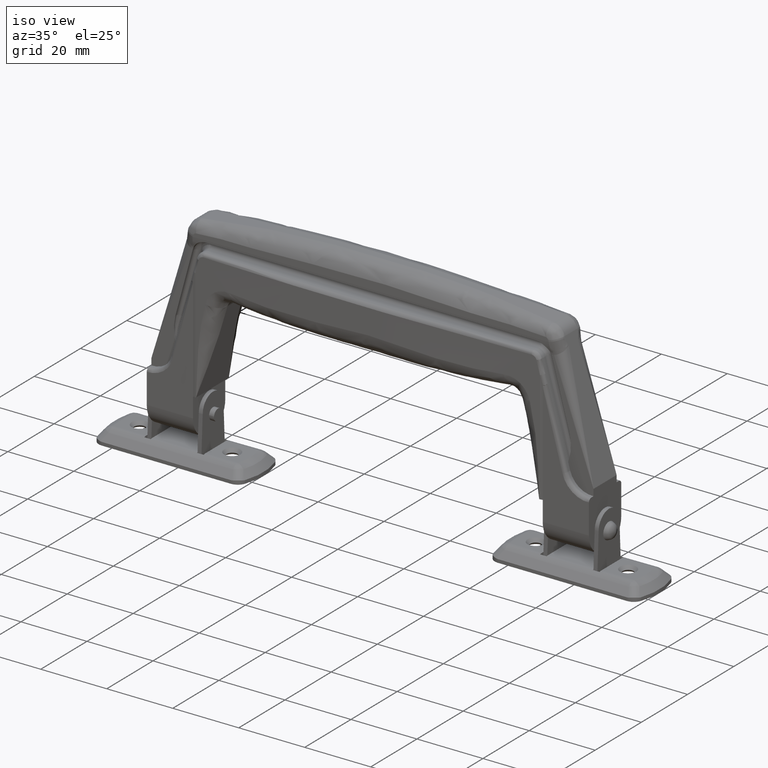
[diagram: clean part render]
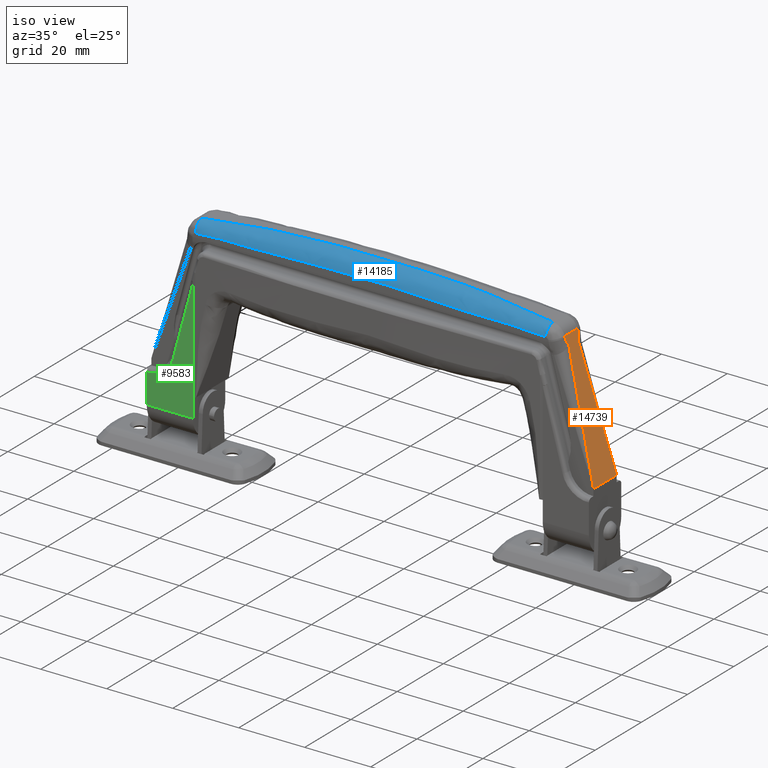
[diagram: same view with three faces highlighted in distinct colors, each labeled with its STEP entity id]
A machine part, iso view with three faces highlighted in distinct colors.
Their STEP definitions:

[orange] entity #14739 — the highlighted face is a freeform B-spline surface patch.
#10053=CARTESIAN_POINT('',(57.396322169592501,1.999933471217850,61.647217914207602));
#10054=VERTEX_POINT('',#10053);
#10712=CARTESIAN_POINT('',(57.396322177275302,-1.999933433971310,61.647217885690601));
#10713=VERTEX_POINT('',#10712);
#13203=CARTESIAN_POINT('',(67.0,5.0,26.0));
#13204=VERTEX_POINT('',#13203);
#13213=CARTESIAN_POINT('',(67.0,5.0,26.0));
#13214=CARTESIAN_POINT('',(63.798845088481698,4.0,37.882142312888149));
#13215=CARTESIAN_POINT('',(60.597690176963297,3.0,49.764284625776298));
#13216=CARTESIAN_POINT('',(57.396535265445003,2.0,61.646426938664497));
#13217=CARTESIAN_POINT('',(57.396464230730018,1.999977809660282,61.646690607439012));
#13218=CARTESIAN_POINT('',(57.396393196015040,1.999955619320564,61.646954276213513));
#13219=CARTESIAN_POINT('',(57.396322169592501,1.999933471217850,61.647217914207602));
#13220=B_SPLINE_CURVE_WITH_KNOTS('',3,(#13213,#13214,#13215,#13216,#13217,#13218,#13219),.UNSPECIFIED.,.F.,.U.,(4,3,4),(0.0,0.333333333333333,0.333340730113239),.UNSPECIFIED.);
#13221=EDGE_CURVE('',#13204,#10054,#13220,.T.);
#13275=CARTESIAN_POINT('',(56.813247883038997,2.750000000000000,63.811490448125511));
#13276=VERTEX_POINT('',#13275);
#13290=CARTESIAN_POINT('',(57.396322169592501,1.999933471217850,61.647217914207602));
#13291=CARTESIAN_POINT('',(57.137768383123998,2.749800798639068,62.606925573246833));
#13292=CARTESIAN_POINT('',(56.813247883038997,2.750000000000000,63.811490448125511));
#13293=QUASI_UNIFORM_CURVE('',2,(#13290,#13291,#13292),.UNSPECIFIED.,.F.,.U.);
#13294=EDGE_CURVE('',#10054,#13276,#13293,.T.);
#13321=CARTESIAN_POINT('',(56.703795117776806,2.749999999999920,64.217760487948993));
#13322=VERTEX_POINT('',#13321);
#13336=CARTESIAN_POINT('',(56.813247883038997,2.750000000000000,63.811490448125511));
#13337=CARTESIAN_POINT('',(56.776763627951603,2.750000000000000,63.946913794733298));
#13338=CARTESIAN_POINT('',(56.740279372864201,2.750000000000000,64.082337141341185));
#13339=CARTESIAN_POINT('',(56.703795117776806,2.750000000000000,64.217760487948993));
#13340=QUASI_UNIFORM_CURVE('',3,(#13336,#13337,#13338,#13339),.UNSPECIFIED.,.F.,.U.);
#13341=EDGE_CURVE('',#13276,#13322,#13340,.T.);
#14216=CARTESIAN_POINT('',(56.703795117776806,-2.750000000000000,64.217760487948993));
#14217=VERTEX_POINT('',#14216);
#14274=CARTESIAN_POINT('',(56.813247883038912,-2.750000000000920,63.811490448125511));
#14275=VERTEX_POINT('',#14274);
#14289=CARTESIAN_POINT('',(56.703795117776806,-2.750000000000000,64.217760487948993));
#14290=CARTESIAN_POINT('',(56.740279372864201,-2.750000000000000,64.082337141341185));
#14291=CARTESIAN_POINT('',(56.776763627951603,-2.750000000000000,63.946913794733298));
#14292=CARTESIAN_POINT('',(56.813247883038912,-2.750000000000920,63.811490448125511));
#14293=QUASI_UNIFORM_CURVE('',3,(#14289,#14290,#14291,#14292),.UNSPECIFIED.,.F.,.U.);
#14294=EDGE_CURVE('',#14217,#14275,#14293,.T.);
#14354=CARTESIAN_POINT('',(56.813247883038933,-2.750000000000918,63.811490448125511));
#14355=CARTESIAN_POINT('',(57.137768388500142,-2.749800798638957,62.606925553291489));
#14356=CARTESIAN_POINT('',(57.396322177275302,-1.999933433971310,61.647217885690601));
#14357=QUASI_UNIFORM_CURVE('',2,(#14354,#14355,#14356),.UNSPECIFIED.,.F.,.U.);
#14358=EDGE_CURVE('',#14275,#10713,#14357,.T.);
#14393=CARTESIAN_POINT('',(67.0,-5.0,26.0));
#14394=VERTEX_POINT('',#14393);
#14395=CARTESIAN_POINT('',(57.396322177275302,-1.999933433971306,61.647217885690637));
#14396=CARTESIAN_POINT('',(57.396393206665202,-1.999955622647537,61.646954236681928));
#14397=CARTESIAN_POINT('',(57.396464236055103,-1.999977811323769,61.646690587673220));
#14398=CARTESIAN_POINT('',(57.396535265445003,-2.0,61.646426938664497));
#14399=CARTESIAN_POINT('',(60.597690176963297,-3.0,49.764284625776298));
#14400=CARTESIAN_POINT('',(63.798845088481698,-4.0,37.882142312888149));
#14401=CARTESIAN_POINT('',(67.0,-5.0,26.0));
#14402=B_SPLINE_CURVE_WITH_KNOTS('',3,(#14395,#14396,#14397,#14398,#14399,#14400,#14401),.UNSPECIFIED.,.F.,.U.,(4,3,4),(0.0,0.000022188183905,1.0),.UNSPECIFIED.);
#14403=EDGE_CURVE('',#10713,#14394,#14402,.T.);
#14430=CARTESIAN_POINT('',(56.703795117776806,2.749999999999920,64.217760487948993));
#14431=CARTESIAN_POINT('',(56.703795117776806,-2.750000000000000,64.217760487948993));
#14432=QUASI_UNIFORM_CURVE('',1,(#14430,#14431),.UNSPECIFIED.,.F.,.U.);
#14433=EDGE_CURVE('',#13322,#14217,#14432,.T.);
#14720=CARTESIAN_POINT('',(56.189500380439640,-5.499499980618060,66.126735038921680));
#14721=CARTESIAN_POINT('',(67.514295657889633,-5.499499980618060,24.091022032093271));
#14722=CARTESIAN_POINT('',(56.189500380439632,5.499500248838961,66.126735038921680));
#14723=CARTESIAN_POINT('',(67.514295657889633,5.499500248838961,24.091022032093271));
#14724=B_SPLINE_SURFACE_WITH_KNOTS('',1,1,((#14720,#14722),(#14721,#14723)),.UNSPECIFIED.,.F.,.F.,.U.,(2,2),(2,2),(0.0,43.534493864849260),(0.0,10.999000229457019),.UNSPECIFIED.);
#14725=CARTESIAN_POINT('',(67.0,5.0,26.0));
#14726=CARTESIAN_POINT('',(67.0,-5.0,26.0));
#14727=QUASI_UNIFORM_CURVE('',1,(#14725,#14726),.UNSPECIFIED.,.F.,.U.);
#14728=EDGE_CURVE('',#13204,#14394,#14727,.T.);
#14729=ORIENTED_EDGE('',*,*,#14728,.F.);
#14730=ORIENTED_EDGE('',*,*,#13221,.T.);
#14731=ORIENTED_EDGE('',*,*,#13294,.T.);
#14732=ORIENTED_EDGE('',*,*,#13341,.T.);
#14733=ORIENTED_EDGE('',*,*,#14433,.T.);
#14734=ORIENTED_EDGE('',*,*,#14294,.T.);
#14735=ORIENTED_EDGE('',*,*,#14358,.T.);
#14736=ORIENTED_EDGE('',*,*,#14403,.T.);
#14737=EDGE_LOOP('',(#14729,#14730,#14731,#14732,#14733,#14734,#14735,#14736));
#14738=FACE_OUTER_BOUND('',#14737,.T.);
#14739=ADVANCED_FACE('',(#14738),#14724,.T.);

[blue] entity #14185 — the highlighted face is a freeform B-spline surface patch.
#14003=CARTESIAN_POINT('',(-52.948556049869097,-5.750000000000000,64.171478752299109));
#14004=VERTEX_POINT('',#14003);
#14005=CARTESIAN_POINT('',(-53.268165040109601,-2.750000000000000,67.154405183399604));
#14006=VERTEX_POINT('',#14005);
#14007=CARTESIAN_POINT('',(-52.948556049869097,-5.750000000000000,64.171478752299109));
#14008=CARTESIAN_POINT('',(-53.268165040109579,-5.750000000000003,67.154405183399561));
#14009=CARTESIAN_POINT('',(-53.268165040109601,-2.750000000000000,67.154405183399490));
#14017=(BOUNDED_CURVE()B_SPLINE_CURVE(2,(#14007,#14008,#14009),.UNSPECIFIED.,.F.,.U.)CURVE()GEOMETRIC_REPRESENTATION_ITEM()QUASI_UNIFORM_CURVE()RATIONAL_B_SPLINE_CURVE((1.0,0.707106781186551,1.0))REPRESENTATION_ITEM(''));
#14018=EDGE_CURVE('',#14004,#14006,#14017,.T.);
#14041=CARTESIAN_POINT('',(-53.798819596789201,-2.726719344449323,67.097547607142118));
#14042=CARTESIAN_POINT('',(-53.798819596789180,-2.738340933948263,67.097547607142033));
#14043=CARTESIAN_POINT('',(-53.798819596787865,-5.750000000014815,67.097547607123232));
#14044=CARTESIAN_POINT('',(-53.476026620202774,-5.749999999999946,64.103747414960196));
#14045=CARTESIAN_POINT('',(-53.474834907937677,-5.749999999999890,64.092694670114312));
#14046=CARTESIAN_POINT('',(-44.778697892554440,-2.787752216063049,68.073469942391114));
#14047=CARTESIAN_POINT('',(-44.778697891424784,-2.799139125459873,68.073469934274655));
#14048=CARTESIAN_POINT('',(-44.778697582090956,-5.749999999741327,68.073467666961662));
#14049=CARTESIAN_POINT('',(-44.492557212062160,-5.750000000000964,65.136793081357851));
#14050=CARTESIAN_POINT('',(-44.491500819603061,-5.750000000001923,65.125951301702358));
#14051=CARTESIAN_POINT('',(-35.732032697792874,-1.215098829164966,68.804067869329302));
#14052=CARTESIAN_POINT('',(-35.732032697589403,-1.232531122885058,68.804067806869213));
#14053=CARTESIAN_POINT('',(-35.732032621080215,-5.750000000045628,68.804051623978012));
#14054=CARTESIAN_POINT('',(-35.409250614237955,-5.749999999999805,64.298164263334797));
#14055=CARTESIAN_POINT('',(-35.408058942596831,-5.749999999999613,64.281529090488931));
#14056=CARTESIAN_POINT('',(-8.907789380108081,-1.215069419515598,70.237256712116221));
#14057=CARTESIAN_POINT('',(-8.907789381752798,-1.232501916104040,70.237257013390945));
#14058=CARTESIAN_POINT('',(-8.907789923955999,-5.749999999972430,70.237335086604944));
#14059=CARTESIAN_POINT('',(-8.827318722819447,-5.750000000000234,65.718377679807801));
#14060=CARTESIAN_POINT('',(-8.827021631431775,-5.750000000000467,65.701694170996888));
#14061=CARTESIAN_POINT('',(8.907267142256661,-1.215069419514784,70.237266011557196));
#14062=CARTESIAN_POINT('',(8.907267141769603,-1.232501916103631,70.237266312833086));
#14063=CARTESIAN_POINT('',(8.907266899565213,-5.750000000069689,70.237344386359894));
#14064=CARTESIAN_POINT('',(8.826801203040683,-5.749999999999845,65.718386895578277));
#14065=CARTESIAN_POINT('',(8.826504133667163,-5.749999999999686,65.701703386457439));
#14066=CARTESIAN_POINT('',(35.731511951966667,-1.215098829165453,68.804105172826581));
#14067=CARTESIAN_POINT('',(35.731511952206610,-1.232531122885302,68.804105110365910));
#14068=CARTESIAN_POINT('',(35.731512038856323,-5.749999999982859,68.804088927317352));
#14069=CARTESIAN_POINT('',(35.408734572277233,-5.750000000000039,64.298201229641990));
#14070=CARTESIAN_POINT('',(35.407542917046300,-5.750000000000078,64.281566055551821));
#14071=CARTESIAN_POINT('',(44.778177908927240,-2.787752216059125,68.073516690636865));
#14072=CARTESIAN_POINT('',(44.778177907780062,-2.799139125456020,68.073516682521074));
#14073=CARTESIAN_POINT('',(44.778177591993582,-5.749999999755882,68.073514415383087));
#14074=CARTESIAN_POINT('',(44.492040294494544,-5.750000000000906,65.136839530945366));
#14075=CARTESIAN_POINT('',(44.490983913392689,-5.750000000001813,65.125997750186613));
#14076=CARTESIAN_POINT('',(53.798300632792838,-2.726719344449328,67.097603772203328));
#14077=CARTESIAN_POINT('',(53.798300632792824,-2.738340933948266,67.097603772203200));
#14078=CARTESIAN_POINT('',(53.798300632791516,-5.750000000014120,67.097603772174594));
#14079=CARTESIAN_POINT('',(53.475510781687547,-5.749999999999948,64.103803243027400));
#14080=CARTESIAN_POINT('',(53.474319080961344,-5.749999999999895,64.092750496937384));
#14088=(BOUNDED_SURFACE()B_SPLINE_SURFACE(2,3,((#14041,#14046,#14051,#14056,#14061,#14066,#14071,#14076),(#14042,#14047,#14052,#14057,#14062,#14067,#14072,#14077),(#14043,#14048,#14053,#14058,#14063,#14068,#14073,#14078),(#14044,#14049,#14054,#14059,#14064,#14069,#14074,#14079),(#14045,#14050,#14055,#14060,#14065,#14070,#14075,#14080)),.UNSPECIFIED.,.F.,.F.,.U.)B_SPLINE_SURFACE_WITH_KNOTS((3,1,1,3),(4,2,2,4),(0.0,0.041044437624058,7.496893603997305,7.536146999400687),(0.0,27.297388231830489,80.821678905813002,108.119067137610400),.UNSPECIFIED.)GEOMETRIC_REPRESENTATION_ITEM()RATIONAL_B_SPLINE_SURFACE(((1.003224753393434,1.003224753393434,1.003224753393434,1.003224753393434,1.003224753393434,1.003224753393434,1.003224753393434,1.003224753393434),(1.001612376696717,1.001612376696717,1.001612376696717,1.001612376696717,1.001612376696717,1.001612376696717,1.001612376696717,1.001612376696717),(0.707106781186551,0.707106781186551,0.707106781186551,0.707106781186551,0.707106781186551,0.707106781186551,0.707106781186551,0.707106781186551),(1.001542017961000,1.001542017961000,1.001542017961000,1.001542017961000,1.001542017961000,1.001542017961000,1.001542017961000,1.001542017961000),(1.003084035922000,1.003084035922000,1.003084035922000,1.003084035922000,1.003084035922000,1.003084035922000,1.003084035922000,1.003084035922000)))REPRESENTATION_ITEM('')SURFACE());
#14089=CARTESIAN_POINT('',(52.948040140643513,-5.750000000000000,64.171534029697995));
#14090=VERTEX_POINT('',#14089);
#14091=CARTESIAN_POINT('',(53.267646016743903,-2.749999999999920,67.154460794464796));
#14092=VERTEX_POINT('',#14091);
#14093=CARTESIAN_POINT('',(52.948040140643513,-5.750000000000000,64.171534029697995));
#14094=CARTESIAN_POINT('',(53.267646016743974,-5.750000000000002,67.154460794464825));
#14095=CARTESIAN_POINT('',(53.267646016744003,-2.749999999999920,67.154460794464796));
#14103=(BOUNDED_CURVE()B_SPLINE_CURVE(2,(#14093,#14094,#14095),.UNSPECIFIED.,.F.,.U.)CURVE()GEOMETRIC_REPRESENTATION_ITEM()QUASI_UNIFORM_CURVE()RATIONAL_B_SPLINE_CURVE((1.0,0.707106781186538,1.0))REPRESENTATION_ITEM(''));
#14104=EDGE_CURVE('',#14090,#14092,#14103,.T.);
#14105=ORIENTED_EDGE('',*,*,#14104,.T.);
#14106=CARTESIAN_POINT('',(-53.268165040109601,-2.750000000000000,67.154405183399604));
#14107=CARTESIAN_POINT('',(-52.865203210200761,-2.748100919992480,67.197293837768839));
#14108=CARTESIAN_POINT('',(-52.039539285525933,-2.744209727983884,67.285172172793068));
#14109=CARTESIAN_POINT('',(-50.771223287483863,-2.714479911334200,67.416134083387760));
#14110=CARTESIAN_POINT('',(-49.443628197393089,-2.667587819142256,67.549956516976792));
#14111=CARTESIAN_POINT('',(-48.056690521623473,-2.601454270039149,67.685871415246467));
#14112=CARTESIAN_POINT('',(-46.189268950224637,-2.492499308943824,67.863531374997351));
#14113=CARTESIAN_POINT('',(-43.492178421069831,-2.292541113407449,68.108594557384876));
#14114=CARTESIAN_POINT('',(-39.984910367644183,-2.000023469183226,68.403704032857050));
#14115=CARTESIAN_POINT('',(-36.475357482469711,-1.707470816650316,68.671525735350997));
#14116=CARTESIAN_POINT('',(-33.463099639514454,-1.484581262320663,68.881199530297835));
#14117=CARTESIAN_POINT('',(-31.003819458314929,-1.349804643971229,69.039614558013795));
#14118=CARTESIAN_POINT('',(-28.783666636188858,-1.268219524580435,69.172345430135124));
#14119=CARTESIAN_POINT('',(-26.802584017284278,-1.246274330503685,69.282268402317740));
#14120=CARTESIAN_POINT('',(-25.006679236240519,-1.250893362758523,69.375202752355634));
#14121=CARTESIAN_POINT('',(-23.340837831577630,-1.249728874510510,69.455836361324444));
#14122=CARTESIAN_POINT('',(-21.674739679143961,-1.250026723894582,69.530912786095570));
#14123=CARTESIAN_POINT('',(-20.008399583884611,-1.249935222879660,69.600431465258865));
#14124=CARTESIAN_POINT('',(-18.341837085597380,-1.249950529778458,69.664391551956925));
#14125=CARTESIAN_POINT('',(-16.675070458579281,-1.249939699371180,69.722792354231700));
#14126=CARTESIAN_POINT('',(-15.008118319138619,-1.249938354225632,69.775633217043762));
#14127=CARTESIAN_POINT('',(-13.340999194662309,-1.249936949290380,69.822913553895717));
#14128=CARTESIAN_POINT('',(-11.673731638597349,-1.249938042200699,69.864632838364528));
#14129=CARTESIAN_POINT('',(-10.006334200218239,-1.249940947470914,69.900790606386749));
#14130=CARTESIAN_POINT('',(-8.338825429337758,-1.249945849404453,69.931386455620483));
#14131=CARTESIAN_POINT('',(-6.671223886459051,-1.249952696275945,69.956420045743130));
#14132=CARTESIAN_POINT('',(-5.003548096217566,-1.249961510683451,69.975891097926421));
#14133=CARTESIAN_POINT('',(-3.335816722222715,-1.249972253958753,69.989799396659720));
#14134=CARTESIAN_POINT('',(-1.668047913010652,-1.249985058176672,69.998144783001251));
#14135=CARTESIAN_POINT('',(0.926281930639783,-1.250007420077272,70.002472948738117));
#14136=CARTESIAN_POINT('',(4.447172750038388,-1.250050918862078,69.986815803053602));
#14137=CARTESIAN_POINT('',(8.894251364871236,-1.250009132838527,69.927480332534074));
#14138=CARTESIAN_POINT('',(13.340628829512861,-1.250246599928534,69.828591542946839));
#14139=CARTESIAN_POINT('',(17.785949203860060,-1.249380273859165,69.690157331955390));
#14140=CARTESIAN_POINT('',(22.229866262378991,-1.252566354779573,69.512188338519266));
#14141=CARTESIAN_POINT('',(25.595955187820500,-1.243470733680415,69.347383771912163));
#14142=CARTESIAN_POINT('',(27.905182633864840,-1.255973793450341,69.221211201946346));
#14143=CARTESIAN_POINT('',(29.178022842665388,-1.285444195553450,69.148485318460231));
#14144=CARTESIAN_POINT('',(30.509970083171929,-1.332413498586570,69.068895024328526));
#14145=CARTESIAN_POINT('',(31.900979947332360,-1.398539069391521,68.981966575811995));
#14146=CARTESIAN_POINT('',(33.772968610684792,-1.507513605748382,68.859629061533042));
#14147=CARTESIAN_POINT('',(36.474727375637791,-1.707472815684202,68.671571001877652));
#14148=CARTESIAN_POINT('',(39.984172312955920,-2.000014822731301,68.403768072880794));
#14149=CARTESIAN_POINT('',(43.491547289798604,-2.292488135290543,68.108633922140214));
#14150=CARTESIAN_POINT('',(46.498711086018531,-2.515579449256738,67.835454666215554));
#14151=CARTESIAN_POINT('',(48.951786742597143,-2.649758123417253,67.599611689810175));
#14152=CARTESIAN_POINT('',(51.164765685531201,-2.733292528199359,67.377229547611705));
#14153=CARTESIAN_POINT('',(52.584996372458818,-2.744576320148944,67.226777325194618));
#14154=CARTESIAN_POINT('',(53.267646016743903,-2.749999999999920,67.154460794464796));
#14155=B_SPLINE_CURVE_WITH_KNOTS('',3,(#14106,#14107,#14108,#14109,#14110,#14111,#14112,#14113,#14114,#14115,#14116,#14117,#14118,#14119,#14120,#14121,#14122,#14123,#14124,#14125,#14126,#14127,#14128,#14129,#14130,#14131,#14132,#14133,#14134,#14135,#14136,#14137,#14138,#14139,#14140,#14141,#14142,#14143,#14144,#14145,#14146,#14147,#14148,#14149,#14150,#14151,#14152,#14153,#14154),.UNSPECIFIED.,.F.,.U.,(4,1,1,1,1,1,1,1,1,1,1,1,1,1,1,1,1,1,1,1,1,1,1,1,1,1,1,1,1,1,1,1,1,1,1,1,1,1,1,1,1,1,1,1,1,1,4),(0.0,0.011378885227021,0.023315198457195,0.035811175443071,0.048868764452065,0.062489672755777,0.088572266891476,0.125117856516239,0.161660752311925,0.187746042763604,0.210132817225955,0.230959435327812,0.250234949954260,0.265845287540633,0.281455625126856,0.297065962712952,0.312676300298940,0.328286637884838,0.343896975470676,0.359507313056471,0.375117650642242,0.390727988228014,0.406338325813806,0.421948663399644,0.437559000985544,0.453169338571531,0.468779676157626,0.484390013743847,0.500000351330222,0.541627800295083,0.583255249259127,0.624882698222768,0.666510147186409,0.708137596150460,0.749765045115324,0.761141264242881,0.773076243791883,0.785572221236547,0.798631145688189,0.812254724632183,0.838336929023931,0.874882911096204,0.911425414175569,0.937511094635485,0.959897829066462,0.980724446405184,1.000000000000000),.UNSPECIFIED.);
#14156=EDGE_CURVE('',#14006,#14092,#14155,.T.);
#14157=ORIENTED_EDGE('',*,*,#14156,.F.);
#14158=ORIENTED_EDGE('',*,*,#14018,.F.);
#14159=CARTESIAN_POINT('',(52.948040140643513,-5.750000000000000,64.171534029697995));
#14160=CARTESIAN_POINT('',(49.947026279365303,-5.750000000000000,64.493033515568399));
#14161=CARTESIAN_POINT('',(46.325484981567598,-5.750000000000000,64.601034226294402));
#14162=CARTESIAN_POINT('',(43.686612866332759,-5.750000000000000,64.679730019197208));
#14163=CARTESIAN_POINT('',(39.686516943528247,-5.750000000000000,64.660734144418399));
#14164=CARTESIAN_POINT('',(33.353727915505047,-5.750000000000000,64.630660648757598));
#14165=CARTESIAN_POINT('',(33.049206105112347,-5.750000000000000,64.631581080730285));
#14166=CARTESIAN_POINT('',(29.268681334536350,-5.750000000000000,64.643007900594398));
#14167=CARTESIAN_POINT('',(26.431622544906599,-5.750000000000000,64.794522331890505));
#14168=CARTESIAN_POINT('',(13.222144777034000,-5.750000000000000,65.499980575841306));
#14169=CARTESIAN_POINT('',(-0.000258648078622,-5.750000000000000,65.499999999932598));
#14170=CARTESIAN_POINT('',(-13.223837193614759,-5.750000000000000,65.500019425750196));
#14171=CARTESIAN_POINT('',(-26.432139104539299,-5.750000000000000,64.794494737318601));
#14172=CARTESIAN_POINT('',(-29.268056926316849,-5.750000000000000,64.643013490817609));
#14173=CARTESIAN_POINT('',(-33.049722494406453,-5.750000000000000,64.631546577569097));
#14174=CARTESIAN_POINT('',(-33.357153754862402,-5.750000000000000,64.630614372557901));
#14175=CARTESIAN_POINT('',(-39.687033363415502,-5.750000000000000,64.660692711938395));
#14176=CARTESIAN_POINT('',(-43.685395571407753,-5.750000000000000,64.679692140505111));
#14177=CARTESIAN_POINT('',(-46.326001339318907,-5.750000000000000,64.600985862742789));
#14178=CARTESIAN_POINT('',(-49.946762561754312,-5.750000000000000,64.493064929619592));
#14179=CARTESIAN_POINT('',(-52.948556049869097,-5.750000000000000,64.171478752299109));
#14180=B_SPLINE_CURVE_WITH_KNOTS('',2,(#14159,#14160,#14161,#14162,#14163,#14164,#14165,#14166,#14167,#14168,#14169,#14170,#14171,#14172,#14173,#14174,#14175,#14176,#14177,#14178,#14179),.UNSPECIFIED.,.F.,.U.,(3,2,2,2,2,2,2,2,2,2,3),(0.0,0.062500000000000,0.125000000000000,0.187500000000000,0.250000000000000,0.500000000000000,0.750000000000000,0.812500000000000,0.875000000000000,0.937500000000000,1.0),.UNSPECIFIED.);
#14181=EDGE_CURVE('',#14090,#14004,#14180,.T.);
#14182=ORIENTED_EDGE('',*,*,#14181,.F.);
#14183=EDGE_LOOP('',(#14105,#14157,#14158,#14182));
#14184=FACE_OUTER_BOUND('',#14183,.T.);
#14185=ADVANCED_FACE('',(#14184),#14088,.T.);

[green] entity #9583 — the highlighted face is a freeform B-spline surface patch.
#7316=CARTESIAN_POINT('',(-58.965923799176302,-7.0,28.911879642467351));
#7317=VERTEX_POINT('',#7316);
#7348=CARTESIAN_POINT('',(-67.0,-7.0,22.998988188956350));
#7349=VERTEX_POINT('',#7348);
#7376=CARTESIAN_POINT('',(-58.965923799176352,-7.0,28.911879642467358));
#7377=CARTESIAN_POINT('',(-60.625345421192407,-7.0,22.752048467378959));
#7378=CARTESIAN_POINT('',(-67.0,-7.0,22.998988188956329));
#7386=(BOUNDED_CURVE()B_SPLINE_CURVE(2,(#7376,#7377,#7378),.UNSPECIFIED.,.F.,.U.)CURVE()GEOMETRIC_REPRESENTATION_ITEM()QUASI_UNIFORM_CURVE()RATIONAL_B_SPLINE_CURVE((1.0,0.781840546697660,1.0))REPRESENTATION_ITEM(''));
#7387=EDGE_CURVE('',#7317,#7349,#7386,.T.);
#7439=CARTESIAN_POINT('',(-53.0,-7.0,51.057596654256393));
#7440=VERTEX_POINT('',#7439);
#7441=CARTESIAN_POINT('',(-53.0,-7.0,51.057596654256393));
#7442=CARTESIAN_POINT('',(-58.965923799176302,-7.0,28.911879642467351));
#7443=QUASI_UNIFORM_CURVE('',1,(#7441,#7442),.UNSPECIFIED.,.F.,.U.);
#7444=EDGE_CURVE('',#7440,#7317,#7443,.T.);
#9316=CARTESIAN_POINT('',(-53.0,-7.0,14.0));
#9317=VERTEX_POINT('',#9316);
#9333=CARTESIAN_POINT('',(-67.0,-7.0,14.0));
#9334=VERTEX_POINT('',#9333);
#9335=CARTESIAN_POINT('',(-67.0,-7.0,14.0));
#9336=CARTESIAN_POINT('',(-53.0,-7.0,14.0));
#9337=QUASI_UNIFORM_CURVE('',1,(#9335,#9336),.UNSPECIFIED.,.F.,.U.);
#9338=EDGE_CURVE('',#9334,#9317,#9337,.T.);
#9556=CARTESIAN_POINT('',(-52.300700027134710,-7.0,12.148973118944710));
#9557=CARTESIAN_POINT('',(-52.300700027134710,-7.0,52.908624529273887));
#9558=CARTESIAN_POINT('',(-67.699300348374564,-7.0,12.148973118944710));
#9559=CARTESIAN_POINT('',(-67.699300348374564,-7.0,52.908624529273887));
#9560=B_SPLINE_SURFACE_WITH_KNOTS('',1,1,((#9556,#9558),(#9557,#9559)),.UNSPECIFIED.,.F.,.F.,.U.,(2,2),(2,2),(0.0,40.759651410329177),(0.0,15.398600321239851),.UNSPECIFIED.);
#9561=ORIENTED_EDGE('',*,*,#7444,.T.);
#9562=ORIENTED_EDGE('',*,*,#7387,.T.);
#9563=CARTESIAN_POINT('',(-67.0,-7.0,14.0));
#9564=CARTESIAN_POINT('',(-67.0,-7.0,22.998988188956350));
#9565=QUASI_UNIFORM_CURVE('',1,(#9563,#9564),.UNSPECIFIED.,.F.,.U.);
#9566=EDGE_CURVE('',#9334,#7349,#9565,.T.);
#9567=ORIENTED_EDGE('',*,*,#9566,.F.);
#9568=ORIENTED_EDGE('',*,*,#9338,.T.);
#9569=CARTESIAN_POINT('',(-53.0,-7.0,20.0));
#9570=VERTEX_POINT('',#9569);
#9571=CARTESIAN_POINT('',(-53.0,-7.0,20.0));
#9572=CARTESIAN_POINT('',(-53.0,-7.0,14.0));
#9573=QUASI_UNIFORM_CURVE('',1,(#9571,#9572),.UNSPECIFIED.,.F.,.U.);
#9574=EDGE_CURVE('',#9570,#9317,#9573,.T.);
#9575=ORIENTED_EDGE('',*,*,#9574,.F.);
#9576=CARTESIAN_POINT('',(-53.0,-7.0,20.0));
#9577=CARTESIAN_POINT('',(-53.0,-7.0,51.057596654256393));
#9578=QUASI_UNIFORM_CURVE('',1,(#9576,#9577),.UNSPECIFIED.,.F.,.U.);
#9579=EDGE_CURVE('',#9570,#7440,#9578,.T.);
#9580=ORIENTED_EDGE('',*,*,#9579,.T.);
#9581=EDGE_LOOP('',(#9561,#9562,#9567,#9568,#9575,#9580));
#9582=FACE_OUTER_BOUND('',#9581,.T.);
#9583=ADVANCED_FACE('',(#9582),#9560,.T.);